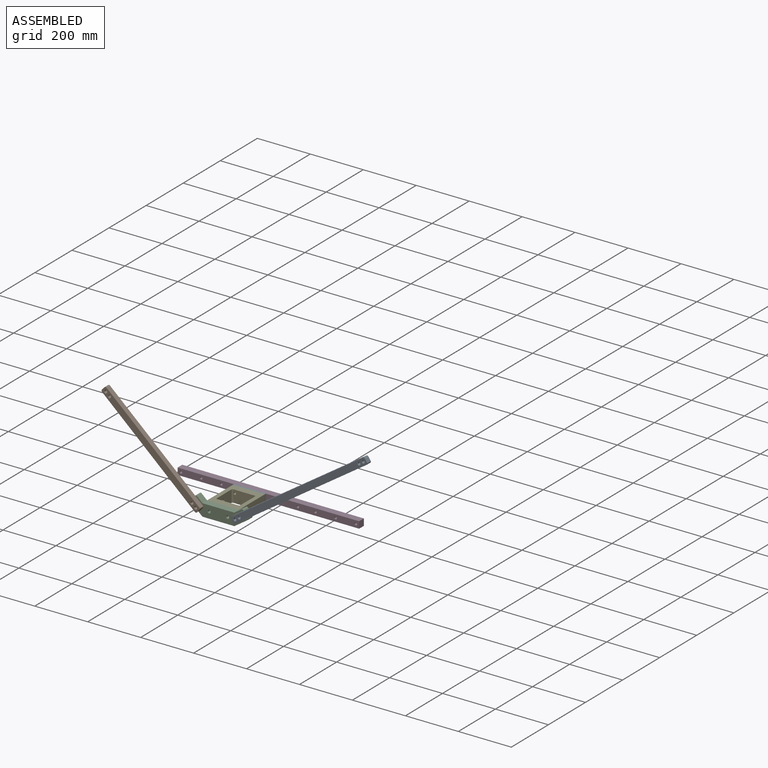
[diagram: assembled view]
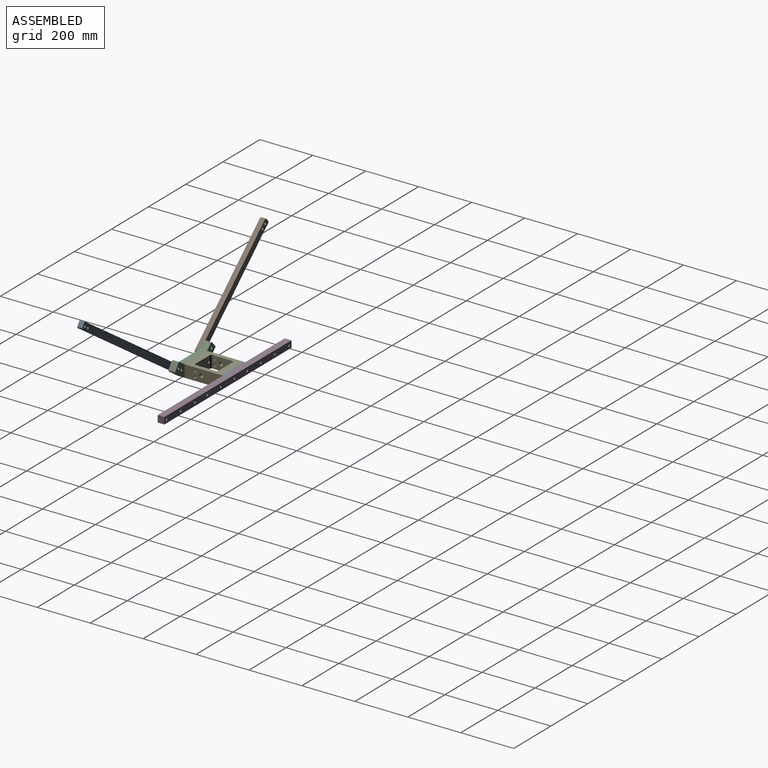
[diagram: assembled view, second angle]
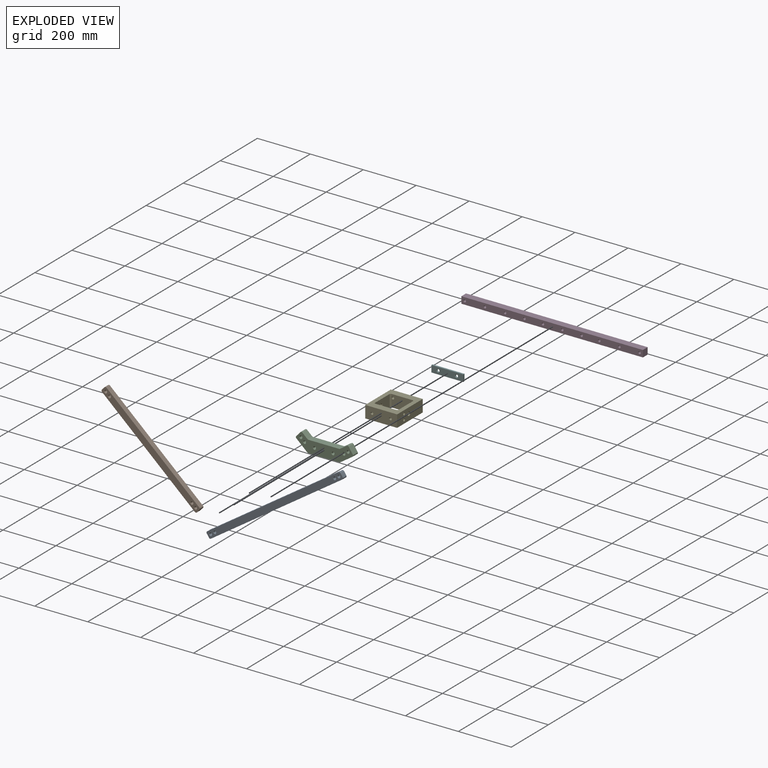
[diagram: exploded view]
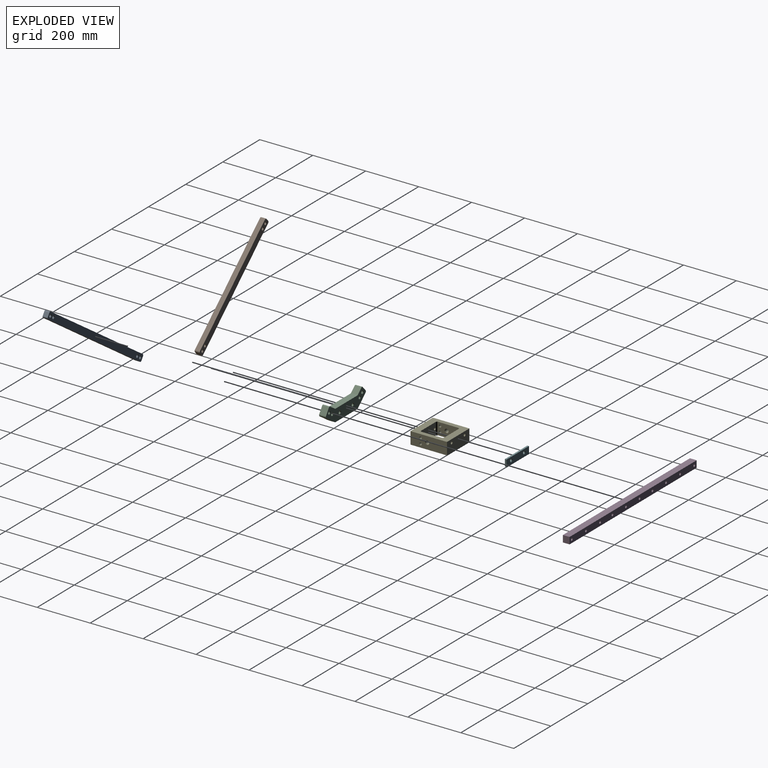
[diagram: exploded view, second angle]
ASSEMBLY  parts=6 mates=14
PART A: 22 faces, bbox 609.6x19.1x25.4 mm
  f0: plane 599.44x19.05mm, normal (0,0,1), area 11419.3mm2, adj f8,f9,f18,f21
  f1: plane 19.05x15.24mm, normal (-1,0,0), area 290.3mm2, adj f8,f9,f18,f19
  f2: plane 599.44x19.05mm, normal (0,0,-1), area 11419.3mm2, adj f8,f9,f19,f20
  f3: cylinder r=4.76mm len=16.51mm, axis (0,1,0), area 494mm2, adj f15,f17
  f4: cylinder r=4.76mm len=16.51mm, axis (0,1,0), area 494mm2, adj f14,f16
  f5: cylinder r=4.76mm len=16.51mm, axis (0,1,0), area 494mm2, adj f10,f12
  f6: plane 19.05x15.24mm, normal (1,0,0), area 290.3mm2, adj f8,f9,f20,f21
  f7: cylinder r=4.76mm len=16.51mm, axis (0,1,0), area 494mm2, adj f11,f13
  f8: plane 609.6x25.4mm, normal (0,-1,0), area 15004.4mm2, adj f0,f1,f2,f6,f12,f13,f16,f17
  f9: plane 609.6x25.4mm, normal (0,1,0), area 15004.4mm2, adj f0,f1,f2,f6,f10,f11,f14,f15
  f10: cone r=4.76mm half-angle=45deg, axis (0,1,0), area 60.9mm2, adj f5,f9
  f11: cone r=4.76mm half-angle=45deg, axis (0,1,0), area 60.9mm2, adj f7,f9
  f12: cone r=6.03mm half-angle=45deg, axis (0,-1,0), area 60.9mm2, adj f5,f8
  f13: cone r=6.03mm half-angle=45deg, axis (0,-1,0), area 60.9mm2, adj f7,f8
  f14: cone r=6.03mm half-angle=45deg, axis (0,1,0), area 60.9mm2, adj f4,f9
  f15: cone r=6.03mm half-angle=45deg, axis (0,1,0), area 60.9mm2, adj f3,f9
  f16: cone r=4.76mm half-angle=45deg, axis (0,-1,0), area 60.9mm2, adj f4,f8
  f17: cone r=4.76mm half-angle=45deg, axis (0,-1,0), area 60.9mm2, adj f3,f8
  f18: cylinder r=5.08mm len=19.05mm, axis (0,1,0), area 152mm2, adj f0,f1,f8,f9
  f19: cylinder r=5.08mm len=19.05mm, axis (0,-1,0), area 152mm2, adj f1,f2,f8,f9
  f20: cylinder r=5.08mm len=19.05mm, axis (0,1,0), area 152mm2, adj f2,f6,f8,f9
  f21: cylinder r=5.08mm len=19.05mm, axis (0,-1,0), area 152mm2, adj f0,f6,f8,f9
PART B: 22 faces, bbox 482.6x19.1x25.4 mm
  f0: plane 472.44x19.05mm, normal (0,0,1), area 9000mm2, adj f8,f9,f18,f21
  f1: plane 19.05x15.24mm, normal (-1,0,0), area 290.3mm2, adj f8,f9,f18,f19
  f2: plane 472.44x19.05mm, normal (0,0,-1), area 9000mm2, adj f8,f9,f19,f20
  f3: cylinder r=4.76mm len=16.51mm, axis (0,1,0), area 494mm2, adj f15,f17
  f4: cylinder r=4.76mm len=16.51mm, axis (0,1,0), area 494mm2, adj f14,f16
  f5: cylinder r=4.76mm len=16.51mm, axis (0,1,0), area 494mm2, adj f10,f12
  f6: plane 19.05x15.24mm, normal (1,0,0), area 290.3mm2, adj f8,f9,f20,f21
  f7: cylinder r=4.76mm len=16.51mm, axis (0,1,0), area 494mm2, adj f11,f13
  f8: plane 482.6x25.4mm, normal (0,-1,0), area 11778.6mm2, adj f0,f1,f2,f6,f12,f13,f16,f17
  f9: plane 482.6x25.4mm, normal (0,1,0), area 11778.6mm2, adj f0,f1,f2,f6,f10,f11,f14,f15
  f10: cone r=4.76mm half-angle=45deg, axis (0,1,0), area 60.9mm2, adj f5,f9
  f11: cone r=4.76mm half-angle=45deg, axis (0,1,0), area 60.9mm2, adj f7,f9
  f12: cone r=6.03mm half-angle=45deg, axis (0,-1,0), area 60.9mm2, adj f5,f8
  f13: cone r=6.03mm half-angle=45deg, axis (0,-1,0), area 60.9mm2, adj f7,f8
  f14: cone r=6.03mm half-angle=45deg, axis (0,1,0), area 60.9mm2, adj f4,f9
  f15: cone r=6.03mm half-angle=45deg, axis (0,1,0), area 60.9mm2, adj f3,f9
  f16: cone r=4.76mm half-angle=45deg, axis (0,-1,0), area 60.9mm2, adj f4,f8
  f17: cone r=4.76mm half-angle=45deg, axis (0,-1,0), area 60.9mm2, adj f3,f8
  f18: cylinder r=5.08mm len=19.05mm, axis (0,1,0), area 152mm2, adj f0,f1,f8,f9
  f19: cylinder r=5.08mm len=19.05mm, axis (0,-1,0), area 152mm2, adj f1,f2,f8,f9
  f20: cylinder r=5.08mm len=19.05mm, axis (0,1,0), area 152mm2, adj f2,f6,f8,f9
  f21: cylinder r=5.08mm len=19.05mm, axis (0,-1,0), area 152mm2, adj f0,f6,f8,f9
PART C: 127 faces, bbox 216.4x25.4x65.8 mm
  f0: plane 117.15x25.4mm, normal (0,0,-1), area 2942mm2, adj f14,f15,f29,f30,f36,f37,f38,f39
  f1: plane 117.15x25.4mm, normal (0,0,1), area 2975.5mm2, adj f14,f15,f28,f31
  f2: plane 25.4x19.07mm, normal (0.67,0,0.74), area 651.9mm2, adj f14,f15,f28,f33
  f3: plane 25.4x17.87mm, normal (-0.74,0,0.67), area 610.9mm2, adj f14,f15,f32,f33
  f4: plane 41.97x37.79mm, normal (-0.67,0,-0.74), area 1434.3mm2, adj f14,f15,f29,f32
  f5: plane 47.14x31.8mm, normal (0.56,0,-0.83), area 1444.4mm2, adj f14,f15,f30,f35
  f6: plane 25.4x23.22mm, normal (0.83,0,0.56), area 711.4mm2, adj f14,f15,f34,f35
  f7: cylinder r=4.76mm len=22.86mm, axis (0,1,0), area 684.1mm2, adj f21,f27
  f8: cylinder r=4.76mm len=22.86mm, axis (0,1,0), area 684.1mm2, adj f17,f23
  f9: cylinder r=4.76mm len=22.86mm, axis (0,1,0), area 684.1mm2, adj f16,f22
  f10: cylinder r=4.76mm len=22.86mm, axis (0,1,0), area 684.1mm2, adj f18,f24
  f11: cylinder r=4.76mm len=22.86mm, axis (0,1,0), area 684.1mm2, adj f19,f25
  f12: plane 25.8x25.4mm, normal (-0.56,0,0.83), area 790.5mm2, adj f14,f15,f31,f34
  f13: cylinder r=4.76mm len=22.86mm, axis (0,1,0), area 684.1mm2, adj f20,f26
  f14: plane 216.42x65.82mm, normal (0,-1,0), area 8424.2mm2, adj f0,f1,f2,f3,f4,f5,f6,f12
  f15: plane 216.42x65.82mm, normal (0,1,0), area 8424.2mm2, adj f0,f1,f2,f3,f4,f5,f6,f12
  f16: cone r=6.03mm half-angle=45deg, axis (0,1,0), area 60.9mm2, adj f9,f15
  f17: cone r=6.03mm half-angle=45deg, axis (0,1,0), area 60.9mm2, adj f8,f15
  f18: cone r=4.76mm half-angle=45deg, axis (0,1,0), area 60.9mm2, adj f10,f15
  f19: cone r=6.03mm half-angle=45deg, axis (0,1,0), area 60.9mm2, adj f11,f15
  f20: cone r=6.03mm half-angle=45deg, axis (0,1,0), area 60.9mm2, adj f13,f15
  f21: cone r=6.03mm half-angle=45deg, axis (0,1,0), area 60.9mm2, adj f7,f15
  f22: cone r=4.76mm half-angle=45deg, axis (0,-1,0), area 60.9mm2, adj f9,f14
  f23: cone r=4.76mm half-angle=45deg, axis (0,-1,0), area 60.9mm2, adj f8,f14
  f24: cone r=6.03mm half-angle=45deg, axis (0,-1,0), area 60.9mm2, adj f10,f14
  f25: cone r=4.76mm half-angle=45deg, axis (0,-1,0), area 60.9mm2, adj f11,f14
  f26: cone r=4.76mm half-angle=45deg, axis (0,-1,0), area 60.9mm2, adj f13,f14
  f27: cone r=4.76mm half-angle=45deg, axis (0,-1,0), area 60.9mm2, adj f7,f14
  f28: cylinder r=5.08mm len=25.4mm, axis (0,-1,0), area 94.6mm2, adj f1,f2,f14,f15
  f29: cylinder r=5.08mm len=25.4mm, axis (0,1,0), area 94.6mm2, adj f0,f4,f14,f15
  f30: cylinder r=5.08mm len=25.4mm, axis (0,-1,0), area 76.6mm2, adj f0,f5,f14,f15
  f31: cylinder r=5.08mm len=25.4mm, axis (0,1,0), area 76.6mm2, adj f1,f12,f14,f15
  f32: cylinder r=5.08mm len=25.4mm, axis (0,-1,0), area 202.7mm2, adj f3,f4,f14,f15
  f33: cylinder r=5.08mm len=25.4mm, axis (0,1,0), area 202.7mm2, adj f2,f3,f14,f15
  f34: cylinder r=5.08mm len=25.4mm, axis (0,1,0), area 202.7mm2, adj f6,f12,f14,f15
  f35: cylinder r=5.08mm len=25.4mm, axis (0,-1,0), area 202.7mm2, adj f5,f6,f14,f15
  f36: plane 2.3x1.06mm, normal (0.91,0.42,0), area 0.3mm2, adj f0,f37,f42,f43
  f37: plane 0.57x0.13mm, normal (0,-1,0), area 0.1mm2, adj f0,f36,f38,f43
  f38: plane 1.56x0.68mm, normal (-0.92,-0.4,0), area 0.2mm2, adj f0,f37,f39,f43
  f39: plane 1.56x0.78mm, normal (0.89,-0.45,0), area 0.2mm2, adj f0,f38,f40,f43
  f40: plane 0.58x0.13mm, normal (0,-1,0), area 0.1mm2, adj f0,f39,f41,f43
  f41: plane 2.3x1.2mm, normal (-0.89,0.46,0), area 0.3mm2, adj f0,f40,f42,f43
  f42: plane 0.35x0.13mm, normal (0,1,0), area 0mm2, adj f0,f36,f41,f43
  f43: plane 2.61x2.3mm, normal (0,0,-1), area 2.3mm2, adj f36,f37,f38,f39,f40,f41,f42
  f44: plane 2.3x1.06mm, normal (0.91,0.42,0), area 0.3mm2, adj f0,f45,f50,f51
  f45: plane 0.57x0.13mm, normal (0,-1,0), area 0.1mm2, adj f0,f44,f46,f51
  f46: plane 1.56x0.68mm, normal (-0.92,-0.4,0), area 0.2mm2, adj f0,f45,f47,f51
  f47: plane 1.56x0.78mm, normal (0.89,-0.45,0), area 0.2mm2, adj f0,f46,f48,f51
  f48: plane 0.58x0.13mm, normal (0,-1,0), area 0.1mm2, adj f0,f47,f49,f51
  f49: plane 2.3x1.2mm, normal (-0.89,0.46,0), area 0.3mm2, adj f0,f48,f50,f51
  f50: plane 0.35x0.13mm, normal (0,1,0), area 0mm2, adj f0,f44,f49,f51
  f51: plane 2.61x2.3mm, normal (0,0,-1), area 2.3mm2, adj f44,f45,f46,f47,f48,f49,f50
  f52: plane 0.75x0.13mm, normal (0,-1,0), area 0.1mm2, adj f0,f53,f59,f60
  f53: plane 2.91x0.13mm, normal (-1,0,0), area 0.4mm2, adj f0,f52,f54,f60
  f54: plane 0.96x0.13mm, normal (0,-1,0), area 0.1mm2, adj f0,f53,f55,f60
  f55: plane 0.62x0.13mm, normal (-1,0,0), area 0.1mm2, adj f0,f54,f56,f60
  f56: plane 2.67x0.13mm, normal (0,1,0), area 0.3mm2, adj f0,f55,f57,f60
  f57: plane 0.62x0.13mm, normal (1,0,0), area 0.1mm2, adj f0,f56,f58,f60
  f58: plane 0.96x0.13mm, normal (0,-1,0), area 0.1mm2, adj f0,f57,f59,f60
  f59: plane 2.91x0.13mm, normal (1,0,0), area 0.4mm2, adj f0,f52,f58,f60
  f60: plane 3.54x2.67mm, normal (0,0,-1), area 3.9mm2, adj f52,f53,f54,f55,f56,f57,f58,f59
  f61: plane 2.3x1.06mm, normal (0.91,0.42,0), area 0.3mm2, adj f0,f62,f67,f68
  f62: plane 0.57x0.13mm, normal (0,-1,0), area 0.1mm2, adj f0,f61,f63,f68
  f63: plane 1.56x0.68mm, normal (-0.92,-0.4,0), area 0.2mm2, adj f0,f62,f64,f68
  f64: plane 1.56x0.78mm, normal (0.89,-0.45,0), area 0.2mm2, adj f0,f63,f65,f68
  f65: plane 0.58x0.13mm, normal (0,-1,0), area 0.1mm2, adj f0,f64,f66,f68
  f66: plane 2.3x1.2mm, normal (-0.89,0.46,0), area 0.3mm2, adj f0,f65,f67,f68
  f67: plane 0.35x0.13mm, normal (0,1,0), area 0mm2, adj f0,f61,f66,f68
  f68: plane 2.61x2.3mm, normal (0,0,-1), area 2.3mm2, adj f61,f62,f63,f64,f65,f66,f67
  f69: plane 2.3x1.06mm, normal (0.91,0.42,0), area 0.3mm2, adj f0,f70,f75,f76
  f70: plane 0.57x0.13mm, normal (0,-1,0), area 0.1mm2, adj f0,f69,f71,f76
  f71: plane 1.56x0.68mm, normal (-0.92,-0.4,0), area 0.2mm2, adj f0,f70,f72,f76
  f72: plane 1.56x0.78mm, normal (0.89,-0.45,0), area 0.2mm2, adj f0,f71,f73,f76
  f73: plane 0.58x0.13mm, normal (0,-1,0), area 0.1mm2, adj f0,f72,f74,f76
  f74: plane 2.3x1.2mm, normal (-0.89,0.46,0), area 0.3mm2, adj f0,f73,f75,f76
  f75: plane 0.35x0.13mm, normal (0,1,0), area 0mm2, adj f0,f69,f74,f76
  f76: plane 2.61x2.3mm, normal (0,0,-1), area 2.3mm2, adj f69,f70,f71,f72,f73,f74,f75
  f77: plane 2.3x1.06mm, normal (0.91,0.42,0), area 0.3mm2, adj f0,f78,f83,f84
  f78: plane 0.57x0.13mm, normal (0,-1,0), area 0.1mm2, adj f0,f77,f79,f84
  f79: plane 1.56x0.68mm, normal (-0.92,-0.4,0), area 0.2mm2, adj f0,f78,f80,f84
  f80: plane 1.56x0.78mm, normal (0.89,-0.45,0), area 0.2mm2, adj f0,f79,f81,f84
  f81: plane 0.58x0.13mm, normal (0,-1,0), area 0.1mm2, adj f0,f80,f82,f84
  f82: plane 2.3x1.2mm, normal (-0.89,0.46,0), area 0.3mm2, adj f0,f81,f83,f84
  f83: plane 0.35x0.13mm, normal (0,1,0), area 0mm2, adj f0,f77,f82,f84
  f84: plane 2.61x2.3mm, normal (0,0,-1), area 2.3mm2, adj f77,f78,f79,f80,f81,f82,f83
  f85: extruded ~0.89x0.23mm, area 0.1mm2, adj f86,f98,f99,f126
  f86: extruded ~0.89x0.23mm, area 0.1mm2, adj f85,f87,f99,f126
  f87: extruded ~0.67x0.3mm, area 0.1mm2, adj f86,f88,f99,f126
  f88: extruded ~1.19x0.89mm, area 0.2mm2, adj f87,f89,f99,f126
  f89: extruded ~1.19x0.9mm, area 0.2mm2, adj f88,f98,f99,f126
  f90: extruded ~1.35x0.44mm, area 0.2mm2, adj f0,f91,f97,f99
  f91: extruded ~1.35x0.43mm, area 0.2mm2, adj f0,f90,f92,f99
  f92: extruded ~1.25x0.47mm, area 0.2mm2, adj f0,f91,f93,f99
  f93: extruded ~1.25x0.47mm, area 0.2mm2, adj f0,f92,f94,f99
  f94: extruded ~1.35x0.44mm, area 0.2mm2, adj f0,f93,f95,f99
  f95: extruded ~1.36x0.44mm, area 0.2mm2, adj f0,f94,f96,f99
  f96: extruded ~1.25x0.47mm, area 0.2mm2, adj f0,f95,f97,f99
  f97: extruded ~1.25x0.47mm, area 0.2mm2, adj f0,f90,f96,f99
  f98: extruded ~0.67x0.3mm, area 0.1mm2, adj f85,f89,f99,f126
  f99: plane 3.64x3.37mm, normal (0,0,-1), area 6.6mm2, adj f85,f86,f87,f88,f89,f90,f91,f92
  f100: extruded ~0.87x0.36mm, area 0.1mm2, adj f0,f101,f115,f116
  f101: extruded ~0.83x0.34mm, area 0.1mm2, adj f0,f100,f102,f116
  f102: extruded ~0.98x0.28mm, area 0.1mm2, adj f0,f101,f103,f116
  f103: plane 1.13x0.13mm, normal (0,1,0), area 0.1mm2, adj f0,f102,f104,f116
  f104: plane 3.54x0.13mm, normal (1,0,0), area 0.4mm2, adj f0,f103,f105,f116
  f105: plane 0.75x0.13mm, normal (0,-1,0), area 0.1mm2, adj f0,f104,f106,f116
  f106: plane 1.26x0.13mm, normal (-1,0,0), area 0.2mm2, adj f0,f105,f107,f116
  f107: plane 0.32x0.13mm, normal (0,-1,0), area 0mm2, adj f0,f106,f115,f116
  f108: plane 0.25x0.13mm, normal (0,1,0), area 0mm2, adj f109,f114,f116,f117
  f109: plane 1.05x0.13mm, normal (-1,0,0), area 0.1mm2, adj f108,f110,f116,f117
  f110: plane 0.34x0.13mm, normal (0,-1,0), area 0mm2, adj f109,f111,f116,f117
  f111: extruded ~0.45x0.13mm, area 0.1mm2, adj f110,f112,f116,f117
  f112: extruded ~0.39x0.14mm, area 0.1mm2, adj f111,f113,f116,f117
  f113: extruded ~0.4x0.17mm, area 0.1mm2, adj f112,f114,f116,f117
  f114: extruded ~0.52x0.14mm, area 0.1mm2, adj f108,f113,f116,f117
  f115: extruded ~1.02x0.3mm, area 0.1mm2, adj f0,f100,f107,f116
  f116: plane 3.54x2.44mm, normal (0,0,-1), area 5.1mm2, adj f100,f101,f102,f103,f104,f105,f106,f107
  f117: plane 1.05x0.94mm, normal (0,0,-1), area 0.9mm2, adj f108,f109,f110,f111,f112,f113,f114
  f118: plane 2.3x1.06mm, normal (0.91,0.42,0), area 0.3mm2, adj f0,f119,f124,f125
  f119: plane 0.57x0.13mm, normal (0,-1,0), area 0.1mm2, adj f0,f118,f120,f125
  f120: plane 1.56x0.68mm, normal (-0.92,-0.4,0), area 0.2mm2, adj f0,f119,f121,f125
  f121: plane 1.56x0.78mm, normal (0.89,-0.45,0), area 0.2mm2, adj f0,f120,f122,f125
  f122: plane 0.58x0.13mm, normal (0,-1,0), area 0.1mm2, adj f0,f121,f123,f125
  f123: plane 2.3x1.2mm, normal (-0.89,0.46,0), area 0.3mm2, adj f0,f122,f124,f125
  f124: plane 0.35x0.13mm, normal (0,1,0), area 0mm2, adj f0,f118,f123,f125
  f125: plane 2.61x2.3mm, normal (0,0,-1), area 2.3mm2, adj f118,f119,f120,f121,f122,f123,f124
  f126: plane 2.39x1.79mm, normal (0,0,-1), area 3.6mm2, adj f85,f86,f87,f88,f89,f98
PART D: 16 faces, bbox 685.8x25.4x25.4 mm
  f0: plane 685.8x25.4mm, normal (0,-1,0), area 16706.8mm2, adj f2,f3,f4,f5,f6,f7,f8,f9
  f1: plane 685.8x25.4mm, normal (0,1,0), area 16706.8mm2, adj f2,f3,f4,f5,f6,f7,f8,f9
  f2: plane 25.4x25.4mm, normal (1,0,0), area 645.2mm2, adj f0,f1,f3,f5
  f3: plane 685.8x25.4mm, normal (0,0,1), area 17419.3mm2, adj f0,f1,f2,f4
  f4: plane 25.4x25.4mm, normal (-1,0,0), area 645.2mm2, adj f0,f1,f3,f5
  f5: plane 685.8x25.4mm, normal (0,0,-1), area 17419.3mm2, adj f0,f1,f2,f4
  f6: cylinder r=4.76mm len=25.4mm, axis (0,-1,0), area 760.1mm2, adj f0,f1
  f7: cylinder r=4.76mm len=25.4mm, axis (0,-1,0), area 760.1mm2, adj f0,f1
  f8: cylinder r=4.76mm len=25.4mm, axis (0,-1,0), area 760.1mm2, adj f0,f1
  f9: cylinder r=4.76mm len=25.4mm, axis (0,-1,0), area 760.1mm2, adj f0,f1
  f10: cylinder r=4.76mm len=25.4mm, axis (0,-1,0), area 760.1mm2, adj f0,f1
  f11: cylinder r=4.76mm len=25.4mm, axis (0,-1,0), area 760.1mm2, adj f0,f1
  f12: cylinder r=4.76mm len=25.4mm, axis (0,-1,0), area 760.1mm2, adj f0,f1
  f13: cylinder r=4.76mm len=25.4mm, axis (0,-1,0), area 760.1mm2, adj f0,f1
  f14: cylinder r=4.76mm len=25.4mm, axis (0,-1,0), area 760.1mm2, adj f0,f1
  f15: cylinder r=4.76mm len=25.4mm, axis (0,-1,0), area 760.1mm2, adj f0,f1
PART E: 28 faces, bbox 120.7x46x138.1 mm
  f0: plane 78.75x46.05mm, normal (0,0,-1), area 3484.1mm2, adj f1,f2,f13,f14,f20,f21
  f1: plane 138.11x120.65mm, normal (0,-1,0), area 8923.3mm2, adj f0,f3,f4,f5,f6,f7,f8,f9
  f2: plane 138.11x120.65mm, normal (0,1,0), area 8923.3mm2, adj f0,f3,f4,f5,f6,f7,f8,f9
  f3: plane 138.11x46.04mm, normal (1,0,0), area 6047.4mm2, adj f1,f2,f4,f6,f16,f22,f23
  f4: plane 120.65x46.04mm, normal (0,0,1), area 5411.9mm2, adj f1,f2,f3,f5,f20,f21
  f5: plane 138.11x46.04mm, normal (-1,0,0), area 6047.4mm2, adj f1,f2,f4,f6,f18,f24,f25
  f6: plane 120.65x46.04mm, normal (0,0,-1), area 5411.9mm2, adj f1,f2,f3,f5,f26,f27
  f7: plane 78.75x46.05mm, normal (0,0,1), area 3483.7mm2, adj f1,f2,f12,f15,f26,f27
  f8: plane 77.15x46.04mm, normal (-1,0,0), area 3241mm2, adj f1,f2,f12,f13,f17,f22,f23
  f9: plane 77.15x46.04mm, normal (1,0,0), area 3241mm2, adj f1,f2,f14,f15,f19,f24,f25
  f10: cylinder r=6.05mm len=13.34mm, axis (1,0,0), area 507mm2, adj f18,f19
  f11: cylinder r=6.05mm len=13.34mm, axis (1,0,0), area 507mm2, adj f16,f17
  f12: cylinder r=5.08mm len=46.04mm, axis (0,1,0), area 366.6mm2, adj f1,f2,f7,f8,f26
  f13: cylinder r=5.08mm len=46.04mm, axis (0,-1,0), area 366.7mm2, adj f0,f1,f2,f8,f21
  f14: cylinder r=5.08mm len=46.04mm, axis (0,1,0), area 366.6mm2, adj f0,f1,f2,f9,f20
  f15: cylinder r=5.08mm len=46.04mm, axis (0,-1,0), area 366.6mm2, adj f1,f2,f7,f9,f27
  f16: cone r=6.05mm half-angle=45deg, axis (1,0,0), area 75.5mm2, adj f3,f11
  f17: cone r=6.05mm half-angle=45deg, axis (-1,0,0), area 75.5mm2, adj f8,f11
  f18: cone r=7.32mm half-angle=45deg, axis (-1,0,0), area 75.5mm2, adj f5,f10
  f19: cone r=7.32mm half-angle=45deg, axis (1,0,0), area 75.5mm2, adj f9,f10
  f20: cylinder r=4.76mm len=25.4mm, axis (0,0,1), area 760.1mm2, adj f0,f4,f14
  f21: cylinder r=4.76mm len=25.41mm, axis (0,0,1), area 759.8mm2, adj f0,f4,f13
  f22: cylinder r=4.76mm len=15.88mm, axis (1,0,0), area 475mm2, adj f3,f8
  f23: cylinder r=4.76mm len=15.88mm, axis (1,0,0), area 475mm2, adj f3,f8
  f24: cylinder r=4.76mm len=15.88mm, axis (-1,0,0), area 475mm2, adj f5,f9
  f25: cylinder r=4.76mm len=15.88mm, axis (-1,0,0), area 475mm2, adj f5,f9
  f26: cylinder r=4.76mm len=25.4mm, axis (0,0,-1), area 760.1mm2, adj f6,f7,f12
  f27: cylinder r=4.76mm len=25.4mm, axis (0,0,-1), area 760.1mm2, adj f6,f7,f15
PART F: 12 faces, bbox 120.7x6.4x25.4 mm
  f0: plane 120.65x6.35mm, normal (0,0,1), area 766.1mm2, adj f1,f4,f6,f7
  f1: plane 25.4x6.35mm, normal (-1,0,0), area 161.3mm2, adj f0,f2,f6,f7
  f2: plane 120.65x6.35mm, normal (0,0,-1), area 766.1mm2, adj f1,f4,f6,f7
  f3: cylinder r=4.76mm len=9.53mm, axis (0,1,0), area 114mm2, adj f9,f10
  f4: plane 25.4x6.35mm, normal (1,0,0), area 161.3mm2, adj f0,f2,f6,f7
  f5: cylinder r=4.76mm len=9.53mm, axis (0,1,0), area 114mm2, adj f8,f11
  f6: plane 120.65x25.4mm, normal (0,-1,0), area 2835.9mm2, adj f0,f1,f2,f4,f10,f11
  f7: plane 120.65x25.4mm, normal (0,1,0), area 2835.9mm2, adj f0,f1,f2,f4,f8,f9
  f8: cone r=6.03mm half-angle=45deg, axis (0,1,0), area 60.9mm2, adj f5,f7
  f9: cone r=4.76mm half-angle=45deg, axis (0,1,0), area 60.9mm2, adj f3,f7
  f10: cone r=6.03mm half-angle=45deg, axis (0,-1,0), area 60.9mm2, adj f3,f6
  f11: cone r=4.76mm half-angle=45deg, axis (0,-1,0), area 60.9mm2, adj f5,f6
PLACE A rot(axis=(0,-1,0),34deg) t=(248.29,-195.26,163.58)mm
PLACE B rot(axis=(0,-1,0),138deg) t=(-312.21,-195.26,153.58)mm
PLACE C t=(-69.85,-169.86,-10.32)mm
PLACE D at identity fixed
PLACE E rot(axis=(1,0,0),90deg) t=(-69.85,-100.81,12.7)mm
PLACE F t=(-69.85,-25.4,0)mm
MATE cylindrical B.f7 <-> C.f7  axis (0,1,0) through (-156.48,-196.53,13.37)mm
MATE cylindrical A.f5 <-> C.f8  axis (0,1,0) through (6.13,-196.53,0.24)mm
MATE cylindrical C.f11 <-> E.f20  axis (0,1,0) through (-104.77,-171.13,-9.53)mm
MATE cylindrical E.f26 <-> F.f3  axis (0,1,0) through (-34.92,-31.75,0)mm
MATE planar A.f9 <-> C.f14  axis (0,1,0) through (248.29,-195.26,163.58)mm
MATE cylindrical C.f10 <-> E.f21  axis (0,1,0) through (-34.92,-193.99,-9.53)mm
MATE cylindrical F.f5 <-> D.f6  axis (0,1,0) through (-104.78,-26.67,0)mm
MATE cylindrical B.f5 <-> C.f13  axis (0,1,0) through (-142.32,-196.53,0.62)mm
MATE planar B.f9 <-> C.f14  axis (0,1,0) through (-312.21,-195.26,153.58)mm
MATE cylindrical E.f27 <-> F.f5  axis (0,1,0) through (-104.78,-31.75,0)mm
MATE planar E.f6 <-> F.f6  axis (0,1,0) through (-69.85,-31.75,-10.59)mm
MATE planar C.f10 <-> E.f21  axis (0,1,0) through (-34.92,-169.86,-9.53)mm
MATE cylindrical A.f7 <-> C.f9  axis (0,1,0) through (21.92,-196.53,10.89)mm
MATE planar F.f7 <-> D.f0  axis (0,1,0) through (-69.85,-25.4,0)mm
